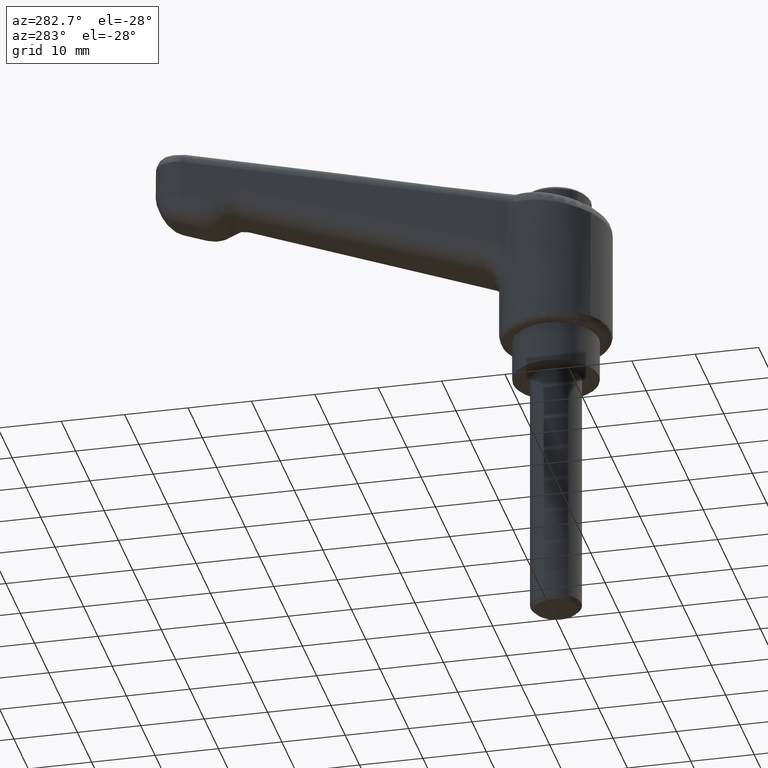
[diagram: clean part render]
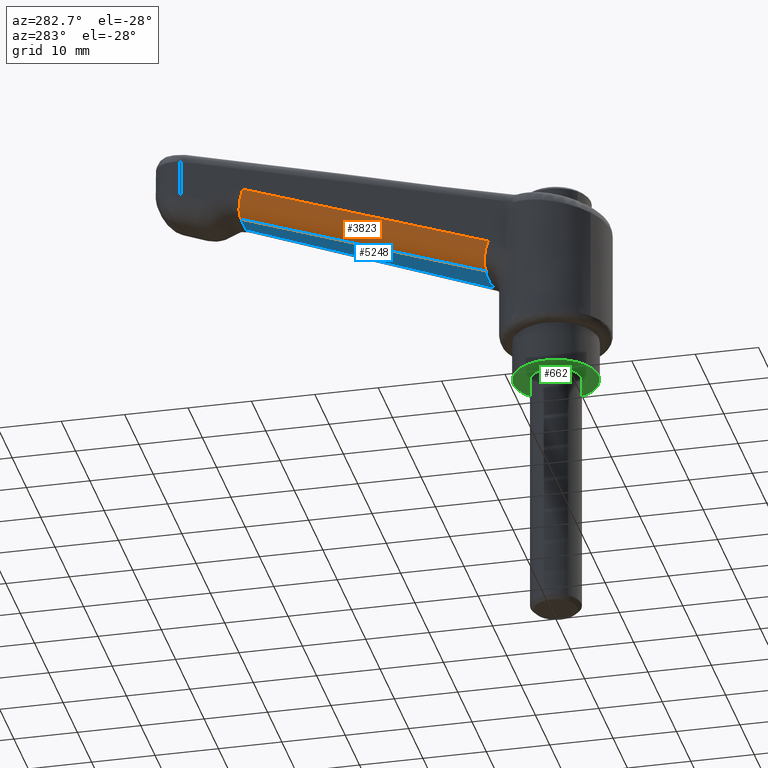
[diagram: same view with three faces highlighted in distinct colors, each labeled with its STEP entity id]
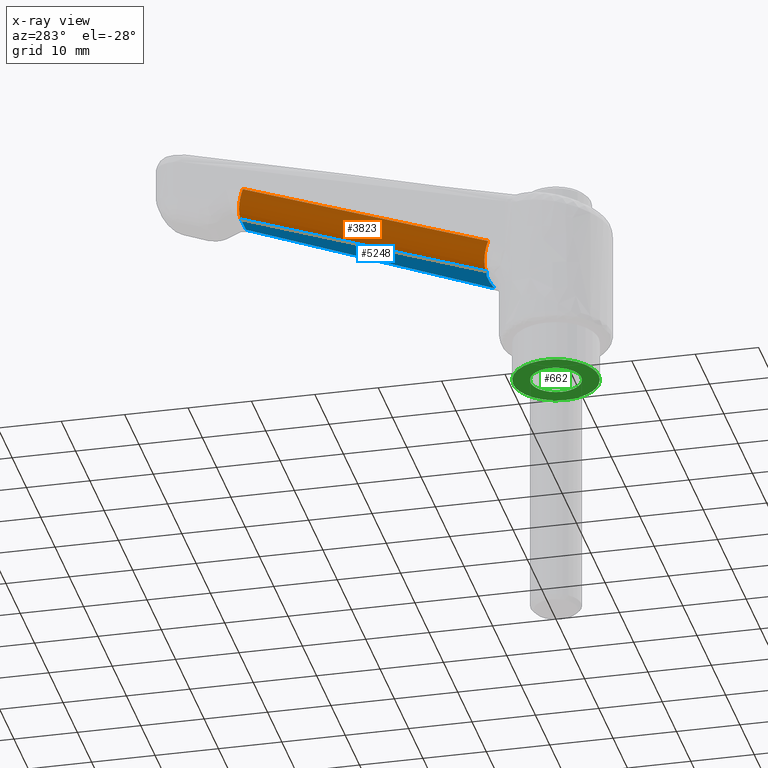
[diagram: x-ray of the same camera — body ghosted, the three highlighted faces saturated]
A machine part, auxiliary view with three faces highlighted in distinct colors.
The next image is the same camera in x-ray (body ghosted, the three faces saturated) — at least one of them is partly hidden behind the body in this view.
Their STEP definitions:

[orange] entity #3823 — the highlighted face is a freeform B-spline surface patch.
#3742=CARTESIAN_POINT('',(9.262958616653201,6.402179053604970,21.973302108330049));
#3743=VERTEX_POINT('',#3742);
#3744=CARTESIAN_POINT('',(10.359522173690999,2.903622422313820,18.684377667119900));
#3745=VERTEX_POINT('',#3744);
#3746=CARTESIAN_POINT('',(9.262958616653201,6.402179053604970,21.973302108330049));
#3747=CARTESIAN_POINT('',(9.350483336143590,6.399709549842497,21.732634833813620));
#3748=CARTESIAN_POINT('',(9.514264341091005,6.341605144567815,21.278063765278770));
#3749=CARTESIAN_POINT('',(9.708365792329694,6.144290907291062,20.729200158467719));
#3750=CARTESIAN_POINT('',(9.878828706492923,5.874948191062596,20.239597784315549));
#3751=CARTESIAN_POINT('',(10.054228705894859,5.478349395496221,19.726386633546969));
#3752=CARTESIAN_POINT('',(10.205753790516990,4.911159382414628,19.265306667487270));
#3753=CARTESIAN_POINT('',(10.296295142920901,4.331046369383759,18.970758241853151));
#3754=CARTESIAN_POINT('',(10.357033431784330,3.700020337672298,18.754074587067691));
#3755=CARTESIAN_POINT('',(10.367866090082689,3.230756211320549,18.687273379669691));
#3756=CARTESIAN_POINT('',(10.359522173690999,2.903622422313820,18.684377667119900));
#3757=B_SPLINE_CURVE_WITH_KNOTS('',3,(#3746,#3747,#3748,#3749,#3750,#3751,#3752,#3753,#3754,#3755,#3756),.UNSPECIFIED.,.F.,.U.,(4,1,1,1,1,1,1,1,4),(0.000000098210943,0.768294070835151,1.451229808184188,1.835380065007223,2.518318712203989,3.457320317639996,4.054900251381615,4.481735394642580,5.463445318236314),.UNSPECIFIED.);
#3758=EDGE_CURVE('',#3743,#3745,#3757,.T.);
#3779=CARTESIAN_POINT('',(8.246319324658852,6.429116084484139,21.737356402377628));
#3780=CARTESIAN_POINT('',(49.158520331568887,5.253794208285529,36.628169396621892));
#3781=CARTESIAN_POINT('',(9.566401671407956,6.529952389128280,18.118416373922493));
#3782=CARTESIAN_POINT('',(50.478602678318019,5.354630512929671,33.009229368166757));
#3783=CARTESIAN_POINT('',(9.376880845697839,2.687254104912545,18.335819329733521));
#3784=CARTESIAN_POINT('',(50.289081852607907,1.511932228713937,33.226632323977782));
#3792=(BOUNDED_SURFACE()B_SPLINE_SURFACE(1,2,((#3779,#3781,#3783),(#3780,#3782,#3784)),.UNSPECIFIED.,.F.,.F.,.U.)B_SPLINE_SURFACE_WITH_KNOTS((2,2),(3,3),(0.0,43.553712635917030),(0.0,6.196964391042118),.UNSPECIFIED.)GEOMETRIC_REPRESENTATION_ITEM()RATIONAL_B_SPLINE_SURFACE(((1.0,0.671051942573897,0.996179641709109),(1.0,0.671051942573897,0.996179641709109)))REPRESENTATION_ITEM('')SURFACE());
#3793=CARTESIAN_POINT('',(48.203780514961402,5.283490771678870,36.146592287265499));
#3794=VERTEX_POINT('',#3793);
#3795=CARTESIAN_POINT('',(49.300344071999113,1.784934140387715,32.857667846055499));
#3796=VERTEX_POINT('',#3795);
#3797=CARTESIAN_POINT('',(48.203780514961402,5.283490771678870,36.146592287265499));
#3798=CARTESIAN_POINT('',(48.335082537216302,5.279950288829511,35.785563246330753));
#3799=CARTESIAN_POINT('',(48.541173414216793,5.171967979223668,35.210809849081457));
#3800=CARTESIAN_POINT('',(48.810650368343381,4.791200802104805,34.440373788173630));
#3801=CARTESIAN_POINT('',(49.008438470050848,4.319177828564895,33.859698609192279));
#3802=CARTESIAN_POINT('',(49.146003502391594,3.775270628443114,33.438811295105040));
#3803=CARTESIAN_POINT('',(49.234058989338870,3.239155510016591,33.154565457752817));
#3804=CARTESIAN_POINT('',(49.297607670059008,2.609789264940106,32.930291315244602));
#3805=CARTESIAN_POINT('',(49.308315846830368,2.097834704047285,32.860462590930943));
#3806=CARTESIAN_POINT('',(49.300344071999113,1.784934140387715,32.857667846055499));
#3807=B_SPLINE_CURVE_WITH_KNOTS('',3,(#3797,#3798,#3799,#3800,#3801,#3802,#3803,#3804,#3805,#3806),.UNSPECIFIED.,.F.,.U.,(4,1,1,1,1,1,1,4),(0.000000098214446,1.152440570888150,1.835380065007053,2.689069421207599,3.457320317639461,3.926849965692406,4.524426674334634,5.463445318236242),.UNSPECIFIED.);
#3808=EDGE_CURVE('',#3794,#3796,#3807,.T.);
#3809=ORIENTED_EDGE('',*,*,#3808,.T.);
#3810=CARTESIAN_POINT('',(10.359522173690999,2.903622422313820,18.684377667119900));
#3811=CARTESIAN_POINT('',(49.300344071999113,1.784934140387715,32.857667846055499));
#3812=QUASI_UNIFORM_CURVE('',1,(#3810,#3811),.UNSPECIFIED.,.F.,.U.);
#3813=EDGE_CURVE('',#3745,#3796,#3812,.T.);
#3814=ORIENTED_EDGE('',*,*,#3813,.F.);
#3815=ORIENTED_EDGE('',*,*,#3758,.F.);
#3816=CARTESIAN_POINT('',(48.203780514961402,5.283490771678870,36.146592287265499));
#3817=CARTESIAN_POINT('',(9.262958616653201,6.402179053604970,21.973302108330049));
#3818=QUASI_UNIFORM_CURVE('',1,(#3816,#3817),.UNSPECIFIED.,.F.,.U.);
#3819=EDGE_CURVE('',#3794,#3743,#3818,.T.);
#3820=ORIENTED_EDGE('',*,*,#3819,.F.);
#3821=EDGE_LOOP('',(#3809,#3814,#3815,#3820));
#3822=FACE_OUTER_BOUND('',#3821,.T.);
#3823=ADVANCED_FACE('',(#3822),#3792,.T.);

[blue] entity #5248 — the highlighted face is a freeform B-spline surface patch.
#3205=CARTESIAN_POINT('',(10.359522173690999,-2.903622422313825,18.684377667119900));
#3206=VERTEX_POINT('',#3205);
#3256=CARTESIAN_POINT('',(49.300344071999113,-1.784934140387715,32.857667846055499));
#3257=VERTEX_POINT('',#3256);
#3279=CARTESIAN_POINT('',(49.300344071999113,-1.784934140387715,32.857667846055499));
#3280=CARTESIAN_POINT('',(10.359522173690999,-2.903622422313825,18.684377667119900));
#3281=QUASI_UNIFORM_CURVE('',1,(#3279,#3280),.UNSPECIFIED.,.F.,.U.);
#3282=EDGE_CURVE('',#3257,#3206,#3281,.T.);
#3744=CARTESIAN_POINT('',(10.359522173690999,2.903622422313820,18.684377667119900));
#3745=VERTEX_POINT('',#3744);
#3795=CARTESIAN_POINT('',(49.300344071999113,1.784934140387715,32.857667846055499));
#3796=VERTEX_POINT('',#3795);
#3810=CARTESIAN_POINT('',(10.359522173690999,2.903622422313820,18.684377667119900));
#3811=CARTESIAN_POINT('',(49.300344071999113,1.784934140387715,32.857667846055499));
#3812=QUASI_UNIFORM_CURVE('',1,(#3810,#3811),.UNSPECIFIED.,.F.,.U.);
#3813=EDGE_CURVE('',#3745,#3796,#3812,.T.);
#5024=CARTESIAN_POINT('',(49.300344071999113,1.784934140387715,32.857667846055499));
#5025=CARTESIAN_POINT('',(49.300344071999113,-1.784934140387715,32.857667846055499));
#5026=QUASI_UNIFORM_CURVE('',1,(#5024,#5025),.UNSPECIFIED.,.F.,.U.);
#5027=EDGE_CURVE('',#3796,#3257,#5026,.T.);
#5159=CARTESIAN_POINT('',(10.359522173690999,-2.903622422313825,18.684377667119900));
#5160=CARTESIAN_POINT('',(10.540746472212581,-2.194877967599058,18.750337871481520));
#5161=CARTESIAN_POINT('',(10.731578023270190,-0.981506497204816,18.819794827359260));
#5162=CARTESIAN_POINT('',(10.731566165789440,0.981508014142454,18.819790511592320));
#5163=CARTESIAN_POINT('',(10.540748358180201,2.194876660656261,18.750338557917051));
#5164=CARTESIAN_POINT('',(10.359522173690999,2.903622422313820,18.684377667119900));
#5165=B_SPLINE_CURVE_WITH_KNOTS('',3,(#5159,#5160,#5161,#5162,#5163,#5164),.UNSPECIFIED.,.F.,.U.,(4,1,1,4),(6.402567E-009,2.203528214636503,3.672546625367251,5.876074833601227),.UNSPECIFIED.);
#5166=EDGE_CURVE('',#3206,#3745,#5165,.T.);
#5237=CARTESIAN_POINT('',(8.414427968920789,-3.193694291047408,17.976421767740849));
#5238=CARTESIAN_POINT('',(51.245436187820879,-3.193694291047408,33.565622985119951));
#5239=CARTESIAN_POINT('',(8.414427968920789,3.193694446809848,17.976421767740849));
#5240=CARTESIAN_POINT('',(51.245436187820879,3.193694446809848,33.565622985119951));
#5241=B_SPLINE_SURFACE_WITH_KNOTS('',1,1,((#5237,#5239),(#5238,#5240)),.UNSPECIFIED.,.F.,.F.,.U.,(2,2),(2,2),(0.0,45.579803198822837),(0.0,6.387388737857256),.UNSPECIFIED.);
#5242=ORIENTED_EDGE('',*,*,#5027,.T.);
#5243=ORIENTED_EDGE('',*,*,#3282,.T.);
#5244=ORIENTED_EDGE('',*,*,#5166,.T.);
#5245=ORIENTED_EDGE('',*,*,#3813,.T.);
#5246=EDGE_LOOP('',(#5242,#5243,#5244,#5245));
#5247=FACE_OUTER_BOUND('',#5246,.T.);
#5248=ADVANCED_FACE('',(#5247),#5241,.F.);

[green] entity #662 — the highlighted face is a freeform B-spline surface patch.
#298=CARTESIAN_POINT('',(-2.901497297186247,-2.753418089901995,-5.551115E-016));
#299=VERTEX_POINT('',#298);
#305=CARTESIAN_POINT('',(-4.0,0.0,0.0));
#306=VERTEX_POINT('',#305);
#307=CARTESIAN_POINT('',(-4.0,0.0,0.0));
#308=CARTESIAN_POINT('',(-4.000323983965301,-0.442936310852302,-8.929957E-017));
#309=CARTESIAN_POINT('',(-3.893784322792903,-1.075399721298981,-2.168093E-016));
#310=CARTESIAN_POINT('',(-3.495433709261422,-2.008837732945673,-4.049980E-016));
#311=CARTESIAN_POINT('',(-3.162938588221862,-2.478156389901700,-4.996165E-016));
#312=CARTESIAN_POINT('',(-2.901497297186247,-2.753418089901995,-5.551115E-016));
#313=B_SPLINE_CURVE_WITH_KNOTS('',3,(#307,#308,#309,#310,#311,#312),.UNSPECIFIED.,.F.,.U.,(4,1,1,4),(0.000000023727920,1.328652456213382,1.898056233393290,3.036890571572985),.UNSPECIFIED.);
#314=EDGE_CURVE('',#306,#299,#313,.T.);
#316=CARTESIAN_POINT('',(-0.000001129859088,3.999999999999841,0.0));
#317=VERTEX_POINT('',#316);
#318=CARTESIAN_POINT('',(-0.000001129859088,3.999999999999841,0.0));
#319=CARTESIAN_POINT('',(-0.359981884114321,4.000121967366798,0.0));
#320=CARTESIAN_POINT('',(-0.981699404651912,3.915483764349698,0.0));
#321=CARTESIAN_POINT('',(-1.733327974386737,3.625500816708554,0.0));
#322=CARTESIAN_POINT('',(-2.340409066999548,3.266686651417420,0.0));
#323=CARTESIAN_POINT('',(-2.818458138320360,2.864444060022789,0.0));
#324=CARTESIAN_POINT('',(-3.307728541787993,2.290206171053741,0.0));
#325=CARTESIAN_POINT('',(-3.644228499323088,1.704583613503065,0.0));
#326=CARTESIAN_POINT('',(-3.926608634102414,0.899874534828499,0.0));
#327=CARTESIAN_POINT('',(-4.000110685099229,0.359984170108671,0.0));
#328=CARTESIAN_POINT('',(-4.0,0.0,0.0));
#329=B_SPLINE_CURVE_WITH_KNOTS('',3,(#318,#319,#320,#321,#322,#323,#324,#325,#326,#327,#328),.UNSPECIFIED.,.F.,.U.,(4,1,1,1,1,1,1,1,4),(0.000000094602795,1.079919268562139,1.865336395291567,2.405297396383972,3.190671298258539,3.730662284138047,4.663329535846875,5.203306083533360,6.283224094696827),.UNSPECIFIED.);
#330=EDGE_CURVE('',#317,#306,#329,.T.);
#332=CARTESIAN_POINT('',(4.0,0.0,0.0));
#333=VERTEX_POINT('',#332);
#334=CARTESIAN_POINT('',(4.0,0.0,0.0));
#335=CARTESIAN_POINT('',(4.000120162602420,0.359982216479088,0.0));
#336=CARTESIAN_POINT('',(3.904381146802153,1.063509754012737,0.0));
#337=CARTESIAN_POINT('',(3.488007260654545,2.051791167076275,0.0));
#338=CARTESIAN_POINT('',(2.878442200529887,2.832814070221163,0.0));
#339=CARTESIAN_POINT('',(2.207196930307286,3.363191743612099,0.0));
#340=CARTESIAN_POINT('',(1.626233466602866,3.669124511708709,0.0));
#341=CARTESIAN_POINT('',(0.916226837684042,3.923211096230800,0.0));
#342=CARTESIAN_POINT('',(0.376355676028939,4.000159649248936,0.0));
#343=CARTESIAN_POINT('',(-0.000001129859088,3.999999999999841,0.0));
#344=B_SPLINE_CURVE_WITH_KNOTS('',3,(#334,#335,#336,#337,#338,#339,#340,#341,#342,#343),.UNSPECIFIED.,.F.,.U.,(4,1,1,1,1,1,1,4),(0.000000094215750,1.079919487178141,2.110774570681054,3.190671944537661,4.025185862176189,4.663330481402261,5.154213677042733,6.283225368319306),.UNSPECIFIED.);
#345=EDGE_CURVE('',#333,#317,#344,.T.);
#347=CARTESIAN_POINT('',(2.582968333397433,-3.054222784444360,-5.110971E-016));
#348=VERTEX_POINT('',#347);
#349=CARTESIAN_POINT('',(2.582968333397433,-3.054222784444360,-5.110971E-016));
#350=CARTESIAN_POINT('',(2.900998633654764,-2.785552834918396,-4.661375E-016));
#351=CARTESIAN_POINT('',(3.391875876954269,-2.216970604442476,-3.709904E-016));
#352=CARTESIAN_POINT('',(3.883078525200729,-1.158300417018259,-1.938313E-016));
#353=CARTESIAN_POINT('',(4.000204953250811,-0.416322530674440,-6.966788E-017));
#354=CARTESIAN_POINT('',(4.0,0.0,0.0));
#355=B_SPLINE_CURVE_WITH_KNOTS('',3,(#349,#350,#351,#352,#353,#354),.UNSPECIFIED.,.F.,.U.,(4,1,1,4),(0.000000031049015,1.248920504769706,2.226312820570810,3.475233294271586),.UNSPECIFIED.);
#356=EDGE_CURVE('',#348,#333,#355,.T.);
#382=CARTESIAN_POINT('',(0.000001129859083,-3.999999999999841,0.0));
#383=VERTEX_POINT('',#382);
#384=CARTESIAN_POINT('',(0.000001129859083,-3.999999999999841,0.0));
#385=CARTESIAN_POINT('',(0.453432768595231,-4.000334158555923,-8.972145E-017));
#386=CARTESIAN_POINT('',(1.096700642200599,-3.889385109021549,-2.170062E-016));
#387=CARTESIAN_POINT('',(1.956790882966537,-3.514103764299972,-3.871940E-016));
#388=CARTESIAN_POINT('',(2.359663140015052,-3.243150427470455,-4.669112E-016));
#389=CARTESIAN_POINT('',(2.582968333397433,-3.054222784444360,-5.110971E-016));
#390=B_SPLINE_CURVE_WITH_KNOTS('',3,(#384,#385,#386,#387,#388,#389),.UNSPECIFIED.,.F.,.U.,(4,1,1,4),(0.000000018187103,1.360134599307118,1.930492865898168,2.807991859645409),.UNSPECIFIED.);
#391=EDGE_CURVE('',#383,#348,#390,.T.);
#393=CARTESIAN_POINT('',(-2.901497297186247,-2.753418089901995,-5.551115E-016));
#394=CARTESIAN_POINT('',(-2.726935146910666,-2.937402606843706,-5.217145E-016));
#395=CARTESIAN_POINT('',(-2.329852646168319,-3.283173901780123,-4.457451E-016));
#396=CARTESIAN_POINT('',(-1.739885722168275,-3.620892533938546,-3.328733E-016));
#397=CARTESIAN_POINT('',(-0.963645472205986,-3.914336002451259,-1.843638E-016));
#398=CARTESIAN_POINT('',(-0.405826058711715,-4.000221345631555,-7.764242E-017));
#399=CARTESIAN_POINT('',(0.000001129859083,-3.999999999999841,0.0));
#400=B_SPLINE_CURVE_WITH_KNOTS('',3,(#393,#394,#395,#396,#397,#398,#399),.UNSPECIFIED.,.F.,.U.,(4,1,1,1,4),(0.000000025469304,0.760859058790141,1.572457486723844,2.028950821342321,3.246335199616623),.UNSPECIFIED.);
#401=EDGE_CURVE('',#299,#383,#400,.T.);
#434=CARTESIAN_POINT('',(-6.750000000000000,0.0,0.0));
#435=VERTEX_POINT('',#434);
#436=CARTESIAN_POINT('',(-4.707665820029312,-4.837393887982242,1.563105E-013));
#437=VERTEX_POINT('',#436);
#438=CARTESIAN_POINT('',(-6.750000000000000,0.0,0.0));
#439=CARTESIAN_POINT('',(-6.750019511298210,-0.365162277657386,1.179947E-014));
#440=CARTESIAN_POINT('',(-6.688325666284391,-1.123577269632156,3.630611E-014));
#441=CARTESIAN_POINT('',(-6.416603884935413,-2.189153454507471,7.073803E-014));
#442=CARTESIAN_POINT('',(-5.987978270280834,-3.169989341777960,1.024317E-013));
#443=CARTESIAN_POINT('',(-5.432772857982203,-4.052022755158138,1.309329E-013));
#444=CARTESIAN_POINT('',(-4.969377322926627,-4.582734665118234,1.480817E-013));
#445=CARTESIAN_POINT('',(-4.707665820029312,-4.837393887982242,1.563105E-013));
#446=B_SPLINE_CURVE_WITH_KNOTS('',3,(#438,#439,#440,#441,#442,#443,#444,#445),.UNSPECIFIED.,.F.,.U.,(4,1,1,1,1,4),(0.000000014046632,1.095492329906957,2.275270411755691,3.286480877563299,4.297714783656636,5.393206961407596),.UNSPECIFIED.);
#447=EDGE_CURVE('',#435,#437,#446,.T.);
#513=CARTESIAN_POINT('',(4.560234069446699,-4.976622159791846,-6.905310E-013));
#514=VERTEX_POINT('',#513);
#520=CARTESIAN_POINT('',(6.750000000000000,0.0,0.0));
#521=VERTEX_POINT('',#520);
#522=CARTESIAN_POINT('',(4.560234069446699,-4.976622159791846,-6.905310E-013));
#523=CARTESIAN_POINT('',(5.011661398381773,-4.563267361688915,-6.331759E-013));
#524=CARTESIAN_POINT('',(5.631499936914596,-3.816253893110662,-5.295241E-013));
#525=CARTESIAN_POINT('',(6.319093539110805,-2.493307987992403,-3.459588E-013));
#526=CARTESIAN_POINT('',(6.673800363937141,-1.282425194142231,-1.779428E-013));
#527=CARTESIAN_POINT('',(6.750018034623093,-0.378890117971206,-5.257288E-014));
#528=CARTESIAN_POINT('',(6.750000000000000,0.0,0.0));
#529=B_SPLINE_CURVE_WITH_KNOTS('',3,(#522,#523,#524,#525,#526,#527,#528),.UNSPECIFIED.,.F.,.U.,(4,1,1,1,4),(0.000000012906961,1.836188005634329,2.885432633499203,4.459315781130250,5.596001092855500),.UNSPECIFIED.);
#530=EDGE_CURVE('',#514,#521,#529,.T.);
#532=CARTESIAN_POINT('',(-0.000000859410744,6.749999999999945,0.0));
#533=VERTEX_POINT('',#532);
#534=CARTESIAN_POINT('',(6.750000000000000,0.0,0.0));
#535=CARTESIAN_POINT('',(6.750163340191449,0.579862271633419,0.0));
#536=CARTESIAN_POINT('',(6.639000894959482,1.435723484117084,0.0));
#537=CARTESIAN_POINT('',(6.196460535600900,2.775407409877301,0.0));
#538=CARTESIAN_POINT('',(5.606301529939912,3.847793533446685,0.0));
#539=CARTESIAN_POINT('',(4.791567264204291,4.792023726052978,0.0));
#540=CARTESIAN_POINT('',(3.970019515878654,5.491988092572194,0.0));
#541=CARTESIAN_POINT('',(2.955497815500726,6.117211917479889,0.0));
#542=CARTESIAN_POINT('',(1.601421794753459,6.620509939258175,0.0));
#543=CARTESIAN_POINT('',(0.552246031692903,6.750144783008192,0.0));
#544=CARTESIAN_POINT('',(-0.000000859410744,6.749999999999945,0.0));
#545=B_SPLINE_CURVE_WITH_KNOTS('',3,(#534,#535,#536,#537,#538,#539,#540,#541,#542,#543,#544),.UNSPECIFIED.,.F.,.U.,(4,1,1,1,1,1,1,1,4),(0.000000054603358,1.739535627753510,2.567899922855031,4.224619317361940,5.384291109044759,6.295480095949493,7.455193641266577,8.946233388207421,10.602942218789391),.UNSPECIFIED.);
#546=EDGE_CURVE('',#521,#533,#545,.T.);
#548=CARTESIAN_POINT('',(-0.000000859410744,6.749999999999945,0.0));
#549=CARTESIAN_POINT('',(-0.662716859918905,6.750314341426878,0.0));
#550=CARTESIAN_POINT('',(-1.766998571739141,6.585971596226880,0.0));
#551=CARTESIAN_POINT('',(-3.125544712601860,6.023181673118677,0.0));
#552=CARTESIAN_POINT('',(-3.988029746415771,5.469527587755131,0.0));
#553=CARTESIAN_POINT('',(-4.686058404161145,4.882163642101904,0.0));
#554=CARTESIAN_POINT('',(-5.421038018701440,4.091127287832698,0.0));
#555=CARTESIAN_POINT('',(-6.054345824647945,3.077324904928777,0.0));
#556=CARTESIAN_POINT('',(-6.602352263044433,1.656524423334870,0.0));
#557=CARTESIAN_POINT('',(-6.750308908015328,0.662727808379192,0.0));
#558=CARTESIAN_POINT('',(-6.750000000000000,0.0,0.0));
#559=B_SPLINE_CURVE_WITH_KNOTS('',3,(#548,#549,#550,#551,#552,#553,#554,#555,#556,#557,#558),.UNSPECIFIED.,.F.,.U.,(4,1,1,1,1,1,1,1,4),(0.000000054901006,1.988044966413110,3.313427694388525,4.390303050575837,5.052994062876862,6.046969241069500,7.620859843928216,8.614897722541816,10.602941250027129),.UNSPECIFIED.);
#560=EDGE_CURVE('',#533,#435,#559,.T.);
#579=CARTESIAN_POINT('',(0.000000859410688,-6.749999999999945,0.0));
#580=VERTEX_POINT('',#579);
#581=CARTESIAN_POINT('',(-4.707665820029312,-4.837393887982242,1.563105E-013));
#582=CARTESIAN_POINT('',(-4.493770073082100,-5.045560386657316,1.492085E-013));
#583=CARTESIAN_POINT('',(-3.934813527169757,-5.521661198884186,1.306492E-013));
#584=CARTESIAN_POINT('',(-3.024416304326844,-6.070700169240821,1.004209E-013));
#585=CARTESIAN_POINT('',(-1.682124064162502,-6.597299213346773,5.585226E-014));
#586=CARTESIAN_POINT('',(-0.678400491247646,-6.750364945480559,2.252523E-014));
#587=CARTESIAN_POINT('',(0.000000859410688,-6.749999999999945,0.0));
#588=B_SPLINE_CURVE_WITH_KNOTS('',3,(#581,#582,#583,#584,#585,#586,#587),.UNSPECIFIED.,.F.,.U.,(4,1,1,1,4),(0.000000014802127,0.895419101017549,2.197865238012589,3.174679782528587,5.209735523415644),.UNSPECIFIED.);
#589=EDGE_CURVE('',#437,#580,#588,.T.);
#591=CARTESIAN_POINT('',(0.000000859410688,-6.749999999999945,0.0));
#592=CARTESIAN_POINT('',(0.391168692701812,-6.750038774597085,-5.923238E-014));
#593=CARTESIAN_POINT('',(1.095244257093967,-6.688596161775079,-1.658467E-013));
#594=CARTESIAN_POINT('',(2.287705739407499,-6.392632027323512,-3.464145E-013));
#595=CARTESIAN_POINT('',(3.457590269524881,-5.857688731425913,-5.235637E-013));
#596=CARTESIAN_POINT('',(4.233411477792314,-5.276154824915605,-6.410420E-013));
#597=CARTESIAN_POINT('',(4.560234069446699,-4.976622159791846,-6.905310E-013));
#598=B_SPLINE_CURVE_WITH_KNOTS('',3,(#591,#592,#593,#594,#595,#596,#597),.UNSPECIFIED.,.F.,.U.,(4,1,1,1,4),(0.000000014766758,1.173501244268240,2.112306057229587,3.676971519922028,5.006940566074428),.UNSPECIFIED.);
#599=EDGE_CURVE('',#580,#514,#598,.T.);
#641=CARTESIAN_POINT('',(-7.424324973834381,7.424324973834320,0.0));
#642=CARTESIAN_POINT('',(7.424325335932597,7.424324973834320,0.0));
#643=CARTESIAN_POINT('',(-7.424324973834381,-7.424325335932537,0.0));
#644=CARTESIAN_POINT('',(7.424325335932597,-7.424325335932537,0.0));
#645=B_SPLINE_SURFACE_WITH_KNOTS('',1,1,((#641,#643),(#642,#644)),.UNSPECIFIED.,.F.,.F.,.U.,(2,2),(2,2),(0.0,14.848650309766979),(0.0,14.848650309766860),.UNSPECIFIED.);
#646=ORIENTED_EDGE('',*,*,#560,.F.);
#647=ORIENTED_EDGE('',*,*,#546,.F.);
#648=ORIENTED_EDGE('',*,*,#530,.F.);
#649=ORIENTED_EDGE('',*,*,#599,.F.);
#650=ORIENTED_EDGE('',*,*,#589,.F.);
#651=ORIENTED_EDGE('',*,*,#447,.F.);
#652=EDGE_LOOP('',(#646,#647,#648,#649,#650,#651));
#653=FACE_OUTER_BOUND('',#652,.T.);
#654=ORIENTED_EDGE('',*,*,#345,.T.);
#655=ORIENTED_EDGE('',*,*,#330,.T.);
#656=ORIENTED_EDGE('',*,*,#314,.T.);
#657=ORIENTED_EDGE('',*,*,#401,.T.);
#658=ORIENTED_EDGE('',*,*,#391,.T.);
#659=ORIENTED_EDGE('',*,*,#356,.T.);
#660=EDGE_LOOP('',(#654,#655,#656,#657,#658,#659));
#661=FACE_BOUND('',#660,.T.);
#662=ADVANCED_FACE('',(#653,#661),#645,.T.);